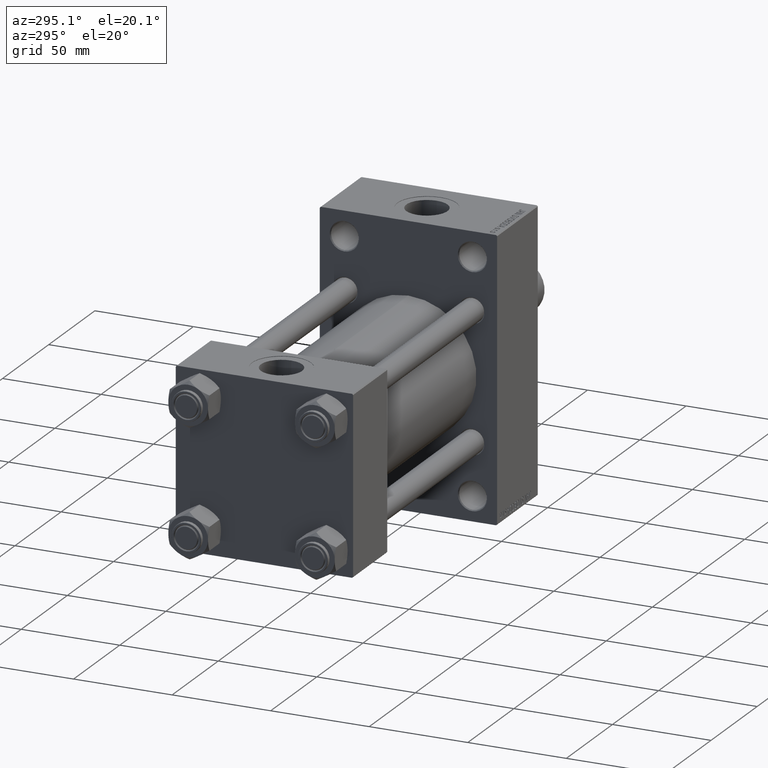
[diagram: clean part render]
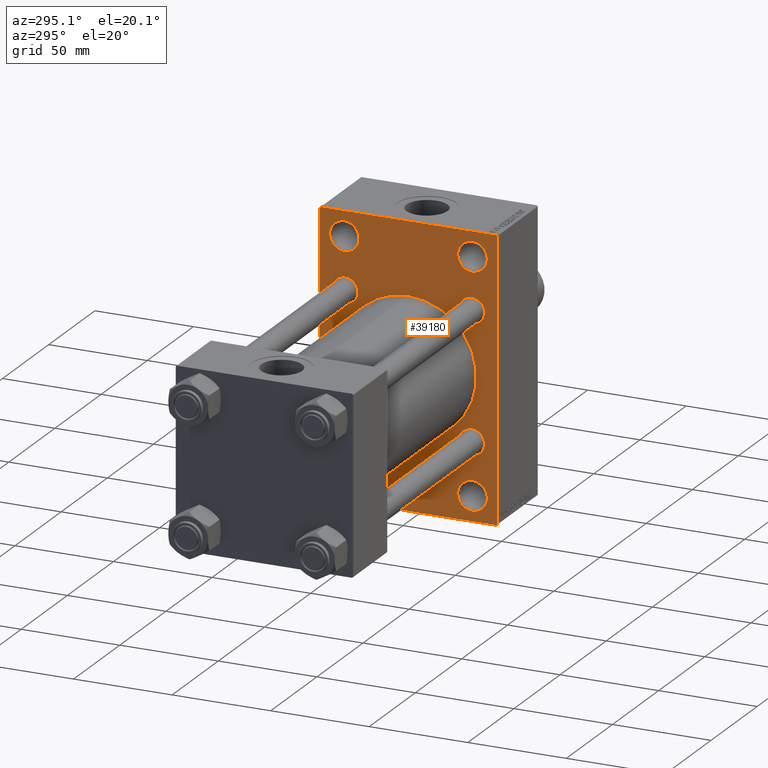
[diagram: same view with one face highlighted and labeled with its STEP entity id]
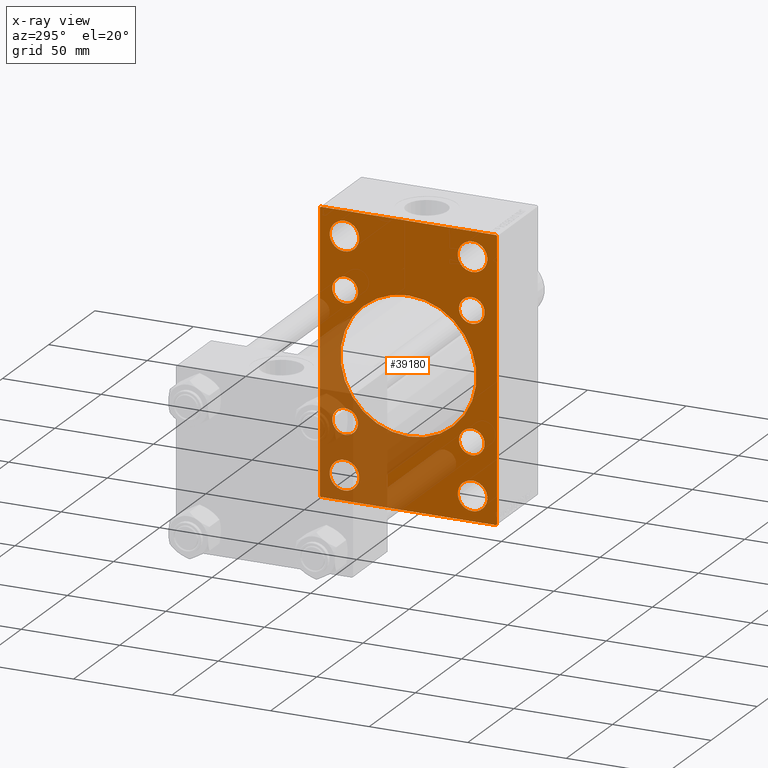
[diagram: x-ray of the same camera — body ghosted, the highlighted face saturated]
A machine part, auxiliary view. The second image highlights one B-rep face of the part: STEP entity #39180.
The next image is the same camera in x-ray: the body ghosted, the highlighted face saturated — about 32% of this face is hidden behind the body in this view.
In plain terms, the highlighted planar face has unit normal (-1, 0, 0).
Its self-contained STEP definition (entity closure, byte-faithful):
#54 = EDGE_CURVE ( 'NONE', #17818, #22087, #6727, .T. ) ;
#55 = EDGE_CURVE ( 'NONE', #6870, #30402, #6371, .T. ) ;
#140 = VECTOR ( 'NONE', #11616, 1000.000000000000000 ) ;
#335 = DIRECTION ( 'NONE',  ( 0.000000000000000000, 0.000000000000000000, 1.000000000000000000 ) ) ;
#1027 = VERTEX_POINT ( 'NONE', #20858 ) ;
#1417 = EDGE_CURVE ( 'NONE', #22087, #17818, #6764, .T. ) ;
#1981 = CIRCLE ( 'NONE', #8168, 6.499999999999999112 ) ;
#2033 = VERTEX_POINT ( 'NONE', #26025 ) ;
#2088 = AXIS2_PLACEMENT_3D ( 'NONE', #26143, #22285, #18685 ) ;
#2285 = CARTESIAN_POINT ( 'NONE',  ( 156.0000000000000000, 32.14999999999999147, -32.14999999999999858 ) ) ;
#2465 = DIRECTION ( 'NONE',  ( 1.000000000000000000, 0.000000000000000000, 0.000000000000000000 ) ) ;
#2508 = DIRECTION ( 'NONE',  ( 1.000000000000000000, 0.000000000000000000, 0.000000000000000000 ) ) ;
#3061 = CARTESIAN_POINT ( 'NONE',  ( 156.0000000000000000, 0.000000000000000000, 0.000000000000000000 ) ) ;
#3094 = AXIS2_PLACEMENT_3D ( 'NONE', #24880, #7013, #6776 ) ;
#3201 = ORIENTED_EDGE ( 'NONE', *, *, #47449, .T. ) ;
#3474 = EDGE_CURVE ( 'NONE', #42878, #35334, #12330, .T. ) ;
#3742 = CIRCLE ( 'NONE', #34549, 6.500000000000005329 ) ;
#3748 = ORIENTED_EDGE ( 'NONE', *, *, #17982, .T. ) ;
#4699 = DIRECTION ( 'NONE',  ( 0.000000000000000000, 0.000000000000000000, 1.000000000000000000 ) ) ;
#4765 = ORIENTED_EDGE ( 'NONE', *, *, #31636, .F. ) ;
#4924 = ORIENTED_EDGE ( 'NONE', *, *, #37319, .T. ) ;
#5003 = EDGE_LOOP ( 'NONE', ( #16131, #24705, #24447, #26573, #4765, #9509, #19650, #9450 ) ) ;
#5054 = ORIENTED_EDGE ( 'NONE', *, *, #54, .T. ) ;
#5695 = CARTESIAN_POINT ( 'NONE',  ( 156.0000000000000000, -45.00000000000000000, -70.50000000000001421 ) ) ;
#5784 = ORIENTED_EDGE ( 'NONE', *, *, #45148, .T. ) ;
#5962 = ORIENTED_EDGE ( 'NONE', *, *, #7362, .T. ) ;
#6224 = FACE_BOUND ( 'NONE', #44836, .T. ) ;
#6371 = LINE ( 'NONE', #13381, #24477 ) ;
#6589 = CARTESIAN_POINT ( 'NONE',  ( 156.0000000000000000, 32.14999999999999147, -32.14999999999999858 ) ) ;
#6683 = DIRECTION ( 'NONE',  ( -1.000000000000000000, 0.000000000000000000, -0.000000000000000000 ) ) ;
#6727 = CIRCLE ( 'NONE', #18314, 7.499999999999936939 ) ;
#6764 = CIRCLE ( 'NONE', #30640, 7.499999999999936939 ) ;
#6776 = DIRECTION ( 'NONE',  ( 0.000000000000000000, 0.000000000000000000, 1.000000000000000000 ) ) ;
#6870 = VERTEX_POINT ( 'NONE', #29730 ) ;
#6975 = DIRECTION ( 'NONE',  ( 0.000000000000000000, 0.000000000000000000, 1.000000000000000000 ) ) ;
#7013 = DIRECTION ( 'NONE',  ( 1.000000000000000000, 0.000000000000000000, 0.000000000000000000 ) ) ;
#7362 = EDGE_CURVE ( 'NONE', #9808, #19491, #24015, .T. ) ;
#7375 = CARTESIAN_POINT ( 'NONE',  ( 156.0000000000000000, -32.50000000000001421, -51.00000000000004263 ) ) ;
#7833 = AXIS2_PLACEMENT_3D ( 'NONE', #14230, #15175, #6975 ) ;
#7895 = EDGE_LOOP ( 'NONE', ( #13570, #3748 ) ) ;
#8095 = DIRECTION ( 'NONE',  ( 1.000000000000000000, 0.000000000000000000, 0.000000000000000000 ) ) ;
#8168 = AXIS2_PLACEMENT_3D ( 'NONE', #38270, #12508, #9839 ) ;
#8368 = VERTEX_POINT ( 'NONE', #20514 ) ;
#8623 = VERTEX_POINT ( 'NONE', #34431 ) ;
#8715 = DIRECTION ( 'NONE',  ( 0.000000000000000000, 0.7071067811865671127, -0.7071067811865279218 ) ) ;
#9093 = CIRCLE ( 'NONE', #22935, 7.499999999999944045 ) ;
#9385 = EDGE_CURVE ( 'NONE', #13686, #12133, #27035, .T. ) ;
#9450 = ORIENTED_EDGE ( 'NONE', *, *, #19000, .T. ) ;
#9509 = ORIENTED_EDGE ( 'NONE', *, *, #13424, .T. ) ;
#9738 = VERTEX_POINT ( 'NONE', #33908 ) ;
#9808 = VERTEX_POINT ( 'NONE', #17045 ) ;
#9839 = DIRECTION ( 'NONE',  ( 0.000000000000000000, 0.000000000000000000, 1.000000000000000000 ) ) ;
#10077 = FACE_BOUND ( 'NONE', #43122, .T. ) ;
#10092 = CARTESIAN_POINT ( 'NONE',  ( 156.0000000000000000, -2.602085213965210642E-15, 0.000000000000000000 ) ) ;
#10466 = CARTESIAN_POINT ( 'NONE',  ( 156.0000000000000000, -32.50000000000001421, 58.50000000000001421 ) ) ;
#10527 = EDGE_LOOP ( 'NONE', ( #4924, #26529 ) ) ;
#11081 = CARTESIAN_POINT ( 'NONE',  ( 156.0000000000000000, 44.49999999999997158, -71.00000000000000000 ) ) ;
#11616 = DIRECTION ( 'NONE',  ( 0.000000000000000000, -1.000000000000000000, 0.000000000000000000 ) ) ;
#12133 = VERTEX_POINT ( 'NONE', #19632 ) ;
#12301 = CIRCLE ( 'NONE', #30004, 34.50000000000000000 ) ;
#12330 = CIRCLE ( 'NONE', #3094, 7.499999999999936939 ) ;
#12508 = DIRECTION ( 'NONE',  ( 1.000000000000000000, 0.000000000000000000, 0.000000000000000000 ) ) ;
#12800 = CARTESIAN_POINT ( 'NONE',  ( 156.0000000000000000, 32.49999999999998579, 58.50000000000000711 ) ) ;
#13141 = CARTESIAN_POINT ( 'NONE',  ( 156.0000000000000000, -32.50000000000001421, -58.49999999999998579 ) ) ;
#13381 = CARTESIAN_POINT ( 'NONE',  ( 156.0000000000000000, -45.00000000000000000, 71.00000000000000000 ) ) ;
#13424 = EDGE_CURVE ( 'NONE', #41602, #8368, #41955, .T. ) ;
#13570 = ORIENTED_EDGE ( 'NONE', *, *, #3474, .T. ) ;
#13686 = VERTEX_POINT ( 'NONE', #11081 ) ;
#14230 = CARTESIAN_POINT ( 'NONE',  ( 156.0000000000000000, 32.14999999999999147, 32.14999999999999858 ) ) ;
#14645 = CARTESIAN_POINT ( 'NONE',  ( 156.0000000000000000, 32.49999999999998579, -65.99999999999991473 ) ) ;
#14729 = EDGE_CURVE ( 'NONE', #9738, #34832, #35771, .T. ) ;
#14909 = CARTESIAN_POINT ( 'NONE',  ( 156.0000000000000000, 44.50000000000000000, 71.00000000000000000 ) ) ;
#15004 = AXIS2_PLACEMENT_3D ( 'NONE', #31548, #24092, #35160 ) ;
#15175 = DIRECTION ( 'NONE',  ( 1.000000000000000000, 0.000000000000000000, 0.000000000000000000 ) ) ;
#15259 = CARTESIAN_POINT ( 'NONE',  ( 156.0000000000000000, -2.602085213965210642E-15, 0.000000000000000000 ) ) ;
#15828 = CARTESIAN_POINT ( 'NONE',  ( 156.0000000000000000, -57.74999999999875655, -57.75000000000195399 ) ) ;
#15925 = ORIENTED_EDGE ( 'NONE', *, *, #14729, .T. ) ;
#16131 = ORIENTED_EDGE ( 'NONE', *, *, #9385, .T. ) ;
#16202 = AXIS2_PLACEMENT_3D ( 'NONE', #2285, #16551, #38926 ) ;
#16260 = EDGE_CURVE ( 'NONE', #36057, #22296, #35700, .T. ) ;
#16309 = AXIS2_PLACEMENT_3D ( 'NONE', #40721, #22604, #36873 ) ;
#16551 = DIRECTION ( 'NONE',  ( 1.000000000000000000, 0.000000000000000000, 0.000000000000000000 ) ) ;
#16855 = FACE_BOUND ( 'NONE', #19702, .T. ) ;
#17045 = CARTESIAN_POINT ( 'NONE',  ( 156.0000000000000000, 32.14999999999999147, 38.65000000000001279 ) ) ;
#17207 = DIRECTION ( 'NONE',  ( 0.000000000000000000, 0.000000000000000000, 1.000000000000000000 ) ) ;
#17331 = DIRECTION ( 'NONE',  ( -0.000000000000000000, 0.000000000000000000, 1.000000000000000000 ) ) ;
#17506 = CARTESIAN_POINT ( 'NONE',  ( 156.0000000000000000, -2.602085213965210642E-15, 34.50000000000000000 ) ) ;
#17769 = DIRECTION ( 'NONE',  ( 0.000000000000000000, -1.000000000000000000, 0.000000000000000000 ) ) ;
#17818 = VERTEX_POINT ( 'NONE', #7375 ) ;
#17982 = EDGE_CURVE ( 'NONE', #35334, #42878, #39615, .T. ) ;
#18014 = CARTESIAN_POINT ( 'NONE',  ( 156.0000000000000000, -57.74999999999997158, 57.74999999999997158 ) ) ;
#18304 = CIRCLE ( 'NONE', #42899, 6.500000000000005329 ) ;
#18314 = AXIS2_PLACEMENT_3D ( 'NONE', #13141, #2508, #31689 ) ;
#18318 = CARTESIAN_POINT ( 'NONE',  ( 156.0000000000000000, 45.00000000000000000, -70.49999999999997158 ) ) ;
#18685 = DIRECTION ( 'NONE',  ( 0.000000000000000000, 0.000000000000000000, 1.000000000000000000 ) ) ;
#18767 = CARTESIAN_POINT ( 'NONE',  ( 156.0000000000000000, -32.14999999999997726, 32.15000000000000568 ) ) ;
#19000 = EDGE_CURVE ( 'NONE', #46564, #13686, #31199, .T. ) ;
#19081 = CIRCLE ( 'NONE', #2088, 6.500000000000005329 ) ;
#19491 = VERTEX_POINT ( 'NONE', #24762 ) ;
#19632 = CARTESIAN_POINT ( 'NONE',  ( 156.0000000000000000, -44.49999999999997158, -71.00000000000000000 ) ) ;
#19650 = ORIENTED_EDGE ( 'NONE', *, *, #35716, .T. ) ;
#19702 = EDGE_LOOP ( 'NONE', ( #5054, #30624 ) ) ;
#19817 = DIRECTION ( 'NONE',  ( 0.000000000000000000, 0.000000000000000000, -1.000000000000000000 ) ) ;
#19851 = DIRECTION ( 'NONE',  ( 0.000000000000000000, 0.000000000000000000, -1.000000000000000000 ) ) ;
#20514 = CARTESIAN_POINT ( 'NONE',  ( 156.0000000000000000, 45.00000000000000000, 70.50000000000001421 ) ) ;
#20858 = CARTESIAN_POINT ( 'NONE',  ( 156.0000000000000000, 32.49999999999998579, 51.00000000000005684 ) ) ;
#20869 = AXIS2_PLACEMENT_3D ( 'NONE', #3061, #6683, #17331 ) ;
#20939 = FACE_BOUND ( 'NONE', #10527, .T. ) ;
#20990 = DIRECTION ( 'NONE',  ( 0.000000000000000000, 0.000000000000000000, 1.000000000000000000 ) ) ;
#21144 = LINE ( 'NONE', #35833, #33000 ) ;
#21797 = DIRECTION ( 'NONE',  ( 1.000000000000000000, 0.000000000000000000, 0.000000000000000000 ) ) ;
#21929 = EDGE_CURVE ( 'NONE', #35132, #36132, #1981, .T. ) ;
#22087 = VERTEX_POINT ( 'NONE', #44743 ) ;
#22189 = ORIENTED_EDGE ( 'NONE', *, *, #24460, .T. ) ;
#22285 = DIRECTION ( 'NONE',  ( 1.000000000000000000, 0.000000000000000000, 0.000000000000000000 ) ) ;
#22296 = VERTEX_POINT ( 'NONE', #17506 ) ;
#22367 = DIRECTION ( 'NONE',  ( 1.000000000000000000, 0.000000000000000000, 0.000000000000000000 ) ) ;
#22604 = DIRECTION ( 'NONE',  ( 1.000000000000000000, 0.000000000000000000, 0.000000000000000000 ) ) ;
#22860 = EDGE_LOOP ( 'NONE', ( #29288, #34523 ) ) ;
#22896 = VECTOR ( 'NONE', #23278, 1000.000000000000000 ) ;
#22935 = AXIS2_PLACEMENT_3D ( 'NONE', #10466, #21797, #39859 ) ;
#22981 = CARTESIAN_POINT ( 'NONE',  ( 156.0000000000000000, 32.49999999999998579, -51.00000000000004263 ) ) ;
#23041 = CARTESIAN_POINT ( 'NONE',  ( 156.0000000000000000, 32.49999999999998579, -58.49999999999998579 ) ) ;
#23234 = CARTESIAN_POINT ( 'NONE',  ( 156.0000000000000000, 45.00000000000000000, 71.00000000000000000 ) ) ;
#23278 = DIRECTION ( 'NONE',  ( 0.000000000000000000, -0.7071067811865671127, 0.7071067811865279218 ) ) ;
#24015 = CIRCLE ( 'NONE', #7833, 6.500000000000005329 ) ;
#24092 = DIRECTION ( 'NONE',  ( 1.000000000000000000, 0.000000000000000000, 0.000000000000000000 ) ) ;
#24447 = ORIENTED_EDGE ( 'NONE', *, *, #55, .F. ) ;
#24460 = EDGE_CURVE ( 'NONE', #40163, #46284, #19081, .T. ) ;
#24477 = VECTOR ( 'NONE', #39624, 1000.000000000000000 ) ;
#24559 = FACE_BOUND ( 'NONE', #34406, .T. ) ;
#24705 = ORIENTED_EDGE ( 'NONE', *, *, #32665, .T. ) ;
#24762 = CARTESIAN_POINT ( 'NONE',  ( 156.0000000000000000, 32.14999999999999147, 25.64999999999998792 ) ) ;
#24880 = CARTESIAN_POINT ( 'NONE',  ( 156.0000000000000000, 32.49999999999998579, -58.49999999999998579 ) ) ;
#24930 = DIRECTION ( 'NONE',  ( 1.000000000000000000, 0.000000000000000000, 0.000000000000000000 ) ) ;
#25240 = VECTOR ( 'NONE', #32463, 1000.000000000000114 ) ;
#25412 = EDGE_CURVE ( 'NONE', #44528, #8623, #18304, .T. ) ;
#26025 = CARTESIAN_POINT ( 'NONE',  ( 156.0000000000000000, -44.49999999999994316, 71.00000000000000000 ) ) ;
#26143 = CARTESIAN_POINT ( 'NONE',  ( 156.0000000000000000, -32.14999999999997726, -32.15000000000000568 ) ) ;
#26172 = LINE ( 'NONE', #15828, #22896 ) ;
#26233 = DIRECTION ( 'NONE',  ( 1.000000000000000000, 0.000000000000000000, 0.000000000000000000 ) ) ;
#26529 = ORIENTED_EDGE ( 'NONE', *, *, #16260, .T. ) ;
#26565 = CARTESIAN_POINT ( 'NONE',  ( 156.0000000000000000, 45.00000000000000000, -71.00000000000000000 ) ) ;
#26573 = ORIENTED_EDGE ( 'NONE', *, *, #32539, .T. ) ;
#26886 = AXIS2_PLACEMENT_3D ( 'NONE', #27548, #2465, #17207 ) ;
#26917 = CARTESIAN_POINT ( 'NONE',  ( 156.0000000000000000, -32.14999999999997726, -25.64999999999999858 ) ) ;
#26978 = CARTESIAN_POINT ( 'NONE',  ( 156.0000000000000000, 32.14999999999999147, -38.65000000000000568 ) ) ;
#27035 = LINE ( 'NONE', #26565, #140 ) ;
#27548 = CARTESIAN_POINT ( 'NONE',  ( 156.0000000000000000, 32.49999999999998579, 58.50000000000000711 ) ) ;
#29097 = DIRECTION ( 'NONE',  ( 1.000000000000000000, 0.000000000000000000, 0.000000000000000000 ) ) ;
#29288 = ORIENTED_EDGE ( 'NONE', *, *, #38675, .T. ) ;
#29350 = EDGE_LOOP ( 'NONE', ( #35369, #37778 ) ) ;
#29624 = AXIS2_PLACEMENT_3D ( 'NONE', #23041, #8095, #4699 ) ;
#29730 = CARTESIAN_POINT ( 'NONE',  ( 156.0000000000000000, -45.00000000000000000, 70.49999999999997158 ) ) ;
#29837 = DIRECTION ( 'NONE',  ( 0.000000000000000000, 0.000000000000000000, 1.000000000000000000 ) ) ;
#29945 = DIRECTION ( 'NONE',  ( 1.000000000000000000, 0.000000000000000000, 0.000000000000000000 ) ) ;
#30004 = AXIS2_PLACEMENT_3D ( 'NONE', #10092, #29097, #36580 ) ;
#30402 = VERTEX_POINT ( 'NONE', #5695 ) ;
#30624 = ORIENTED_EDGE ( 'NONE', *, *, #1417, .T. ) ;
#30640 = AXIS2_PLACEMENT_3D ( 'NONE', #40825, #34088, #335 ) ;
#30907 = CIRCLE ( 'NONE', #42342, 6.499999999999999112 ) ;
#31199 = LINE ( 'NONE', #45889, #43488 ) ;
#31533 = FACE_BOUND ( 'NONE', #29350, .T. ) ;
#31548 = CARTESIAN_POINT ( 'NONE',  ( 156.0000000000000000, -32.50000000000001421, 58.50000000000001421 ) ) ;
#31636 = EDGE_CURVE ( 'NONE', #41602, #2033, #21144, .T. ) ;
#31689 = DIRECTION ( 'NONE',  ( 0.000000000000000000, 0.000000000000000000, 1.000000000000000000 ) ) ;
#31829 = DIRECTION ( 'NONE',  ( 1.000000000000000000, 0.000000000000000000, 0.000000000000000000 ) ) ;
#32463 = DIRECTION ( 'NONE',  ( -0.000000000000000000, 0.7071067811865474617, 0.7071067811865474617 ) ) ;
#32481 = FACE_BOUND ( 'NONE', #7895, .T. ) ;
#32539 = EDGE_CURVE ( 'NONE', #6870, #2033, #40158, .T. ) ;
#32636 = AXIS2_PLACEMENT_3D ( 'NONE', #15259, #29945, #19817 ) ;
#32665 = EDGE_CURVE ( 'NONE', #12133, #30402, #26172, .T. ) ;
#33000 = VECTOR ( 'NONE', #17769, 1000.000000000000000 ) ;
#33450 = DIRECTION ( 'NONE',  ( 0.000000000000000000, 0.000000000000000000, 1.000000000000000000 ) ) ;
#33630 = EDGE_CURVE ( 'NONE', #34832, #9738, #9093, .T. ) ;
#33908 = CARTESIAN_POINT ( 'NONE',  ( 156.0000000000000000, -32.50000000000001421, 65.99999999999997158 ) ) ;
#34088 = DIRECTION ( 'NONE',  ( 1.000000000000000000, 0.000000000000000000, 0.000000000000000000 ) ) ;
#34406 = EDGE_LOOP ( 'NONE', ( #42929, #3201 ) ) ;
#34412 = CARTESIAN_POINT ( 'NONE',  ( 156.0000000000000000, 32.14999999999999147, 32.14999999999999858 ) ) ;
#34431 = CARTESIAN_POINT ( 'NONE',  ( 156.0000000000000000, 32.14999999999999147, -25.64999999999999147 ) ) ;
#34474 = EDGE_LOOP ( 'NONE', ( #15925, #42582 ) ) ;
#34523 = ORIENTED_EDGE ( 'NONE', *, *, #25412, .T. ) ;
#34549 = AXIS2_PLACEMENT_3D ( 'NONE', #34412, #26233, #29837 ) ;
#34720 = CARTESIAN_POINT ( 'NONE',  ( 156.0000000000000000, -32.14999999999997726, -38.65000000000001279 ) ) ;
#34832 = VERTEX_POINT ( 'NONE', #45858 ) ;
#35132 = VERTEX_POINT ( 'NONE', #38018 ) ;
#35160 = DIRECTION ( 'NONE',  ( 0.000000000000000000, 0.000000000000000000, 1.000000000000000000 ) ) ;
#35208 = EDGE_CURVE ( 'NONE', #19491, #9808, #3742, .T. ) ;
#35310 = VECTOR ( 'NONE', #19851, 1000.000000000000000 ) ;
#35334 = VERTEX_POINT ( 'NONE', #14645 ) ;
#35369 = ORIENTED_EDGE ( 'NONE', *, *, #21929, .T. ) ;
#35623 = FACE_OUTER_BOUND ( 'NONE', #5003, .T. ) ;
#35700 = CIRCLE ( 'NONE', #32636, 34.50000000000000000 ) ;
#35716 = EDGE_CURVE ( 'NONE', #8368, #46564, #41532, .T. ) ;
#35771 = CIRCLE ( 'NONE', #15004, 7.499999999999944045 ) ;
#35833 = CARTESIAN_POINT ( 'NONE',  ( 156.0000000000000000, 45.00000000000000000, 71.00000000000000000 ) ) ;
#35859 = FACE_BOUND ( 'NONE', #22860, .T. ) ;
#35919 = EDGE_CURVE ( 'NONE', #40210, #1027, #44586, .T. ) ;
#36057 = VERTEX_POINT ( 'NONE', #39585 ) ;
#36132 = VERTEX_POINT ( 'NONE', #37142 ) ;
#36580 = DIRECTION ( 'NONE',  ( 0.000000000000000000, 0.000000000000000000, -1.000000000000000000 ) ) ;
#36606 = ORIENTED_EDGE ( 'NONE', *, *, #35208, .T. ) ;
#36873 = DIRECTION ( 'NONE',  ( 0.000000000000000000, 0.000000000000000000, 1.000000000000000000 ) ) ;
#37142 = CARTESIAN_POINT ( 'NONE',  ( 156.0000000000000000, -32.14999999999997726, 25.65000000000000213 ) ) ;
#37235 = VECTOR ( 'NONE', #8715, 1000.000000000000000 ) ;
#37319 = EDGE_CURVE ( 'NONE', #22296, #36057, #12301, .T. ) ;
#37778 = ORIENTED_EDGE ( 'NONE', *, *, #42321, .T. ) ;
#38018 = CARTESIAN_POINT ( 'NONE',  ( 156.0000000000000000, -32.14999999999997726, 38.65000000000001279 ) ) ;
#38270 = CARTESIAN_POINT ( 'NONE',  ( 156.0000000000000000, -32.14999999999997726, 32.15000000000000568 ) ) ;
#38675 = EDGE_CURVE ( 'NONE', #8623, #44528, #40790, .T. ) ;
#38926 = DIRECTION ( 'NONE',  ( 0.000000000000000000, 0.000000000000000000, 1.000000000000000000 ) ) ;
#39180 = ADVANCED_FACE ( 'NONE', ( #46227, #16855, #32481, #24559, #31533, #6224, #35859, #10077, #20939, #35623 ), #46936, .T. ) ;
#39585 = CARTESIAN_POINT ( 'NONE',  ( 156.0000000000000000, 1.622946243093158675E-15, -34.50000000000000000 ) ) ;
#39615 = CIRCLE ( 'NONE', #29624, 7.499999999999936939 ) ;
#39624 = DIRECTION ( 'NONE',  ( 0.000000000000000000, 0.000000000000000000, -1.000000000000000000 ) ) ;
#39859 = DIRECTION ( 'NONE',  ( 0.000000000000000000, 0.000000000000000000, 1.000000000000000000 ) ) ;
#40158 = LINE ( 'NONE', #18014, #25240 ) ;
#40163 = VERTEX_POINT ( 'NONE', #26917 ) ;
#40210 = VERTEX_POINT ( 'NONE', #45935 ) ;
#40721 = CARTESIAN_POINT ( 'NONE',  ( 156.0000000000000000, -32.14999999999997726, -32.15000000000000568 ) ) ;
#40790 = CIRCLE ( 'NONE', #16202, 6.500000000000005329 ) ;
#40825 = CARTESIAN_POINT ( 'NONE',  ( 156.0000000000000000, -32.50000000000001421, -58.49999999999998579 ) ) ;
#41532 = LINE ( 'NONE', #23234, #35310 ) ;
#41602 = VERTEX_POINT ( 'NONE', #14909 ) ;
#41955 = LINE ( 'NONE', #42188, #37235 ) ;
#42188 = CARTESIAN_POINT ( 'NONE',  ( 156.0000000000000000, 57.74999999999875655, 57.75000000000195399 ) ) ;
#42262 = DIRECTION ( 'NONE',  ( -0.000000000000000000, -0.7071067811865474617, -0.7071067811865474617 ) ) ;
#42321 = EDGE_CURVE ( 'NONE', #36132, #35132, #30907, .T. ) ;
#42342 = AXIS2_PLACEMENT_3D ( 'NONE', #18767, #22367, #33450 ) ;
#42510 = CIRCLE ( 'NONE', #45584, 7.499999999999951150 ) ;
#42582 = ORIENTED_EDGE ( 'NONE', *, *, #33630, .T. ) ;
#42878 = VERTEX_POINT ( 'NONE', #22981 ) ;
#42899 = AXIS2_PLACEMENT_3D ( 'NONE', #6589, #24930, #46128 ) ;
#42929 = ORIENTED_EDGE ( 'NONE', *, *, #35919, .T. ) ;
#43122 = EDGE_LOOP ( 'NONE', ( #22189, #5784 ) ) ;
#43488 = VECTOR ( 'NONE', #42262, 1000.000000000000114 ) ;
#43953 = CIRCLE ( 'NONE', #16309, 6.500000000000005329 ) ;
#44528 = VERTEX_POINT ( 'NONE', #26978 ) ;
#44586 = CIRCLE ( 'NONE', #26886, 7.499999999999951150 ) ;
#44743 = CARTESIAN_POINT ( 'NONE',  ( 156.0000000000000000, -32.50000000000001421, -65.99999999999991473 ) ) ;
#44836 = EDGE_LOOP ( 'NONE', ( #5962, #36606 ) ) ;
#45148 = EDGE_CURVE ( 'NONE', #46284, #40163, #43953, .T. ) ;
#45584 = AXIS2_PLACEMENT_3D ( 'NONE', #12800, #31829, #20990 ) ;
#45858 = CARTESIAN_POINT ( 'NONE',  ( 156.0000000000000000, -32.50000000000001421, 51.00000000000006395 ) ) ;
#45889 = CARTESIAN_POINT ( 'NONE',  ( 156.0000000000000000, 57.74999999999997158, -57.74999999999997158 ) ) ;
#45935 = CARTESIAN_POINT ( 'NONE',  ( 156.0000000000000000, 32.49999999999998579, 65.99999999999995737 ) ) ;
#46128 = DIRECTION ( 'NONE',  ( 0.000000000000000000, 0.000000000000000000, 1.000000000000000000 ) ) ;
#46227 = FACE_BOUND ( 'NONE', #34474, .T. ) ;
#46284 = VERTEX_POINT ( 'NONE', #34720 ) ;
#46564 = VERTEX_POINT ( 'NONE', #18318 ) ;
#46936 = PLANE ( 'NONE',  #20869 ) ;
#47449 = EDGE_CURVE ( 'NONE', #1027, #40210, #42510, .T. ) ;